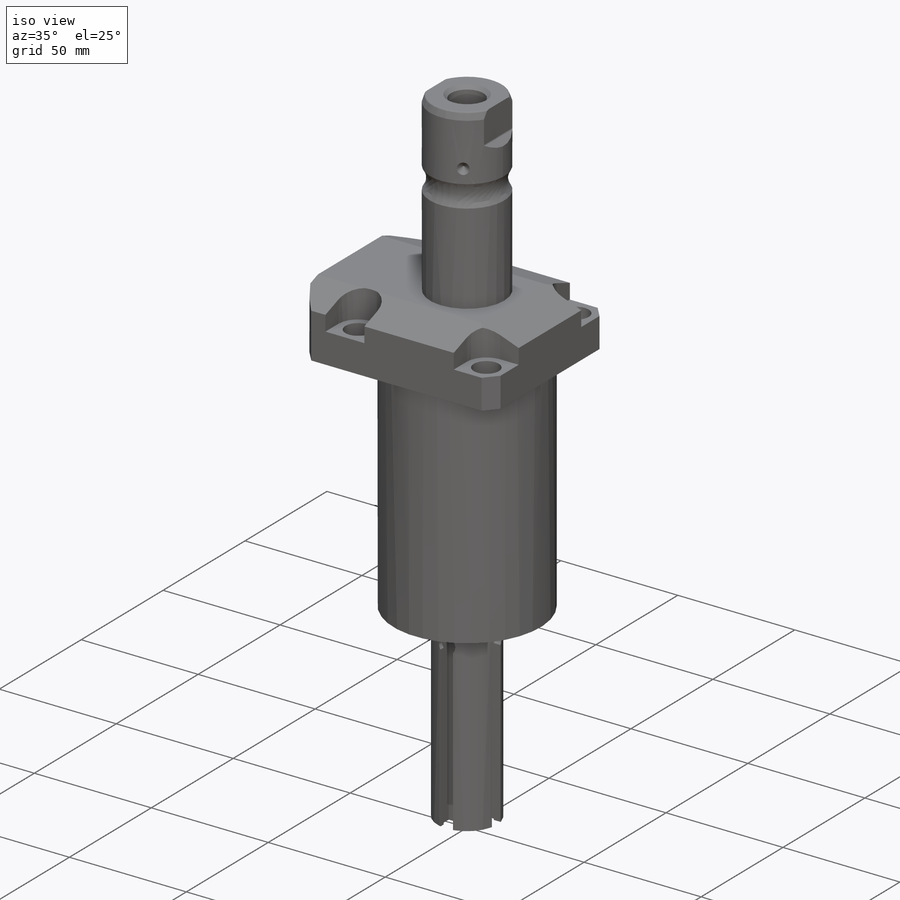
[diagram: iso view]
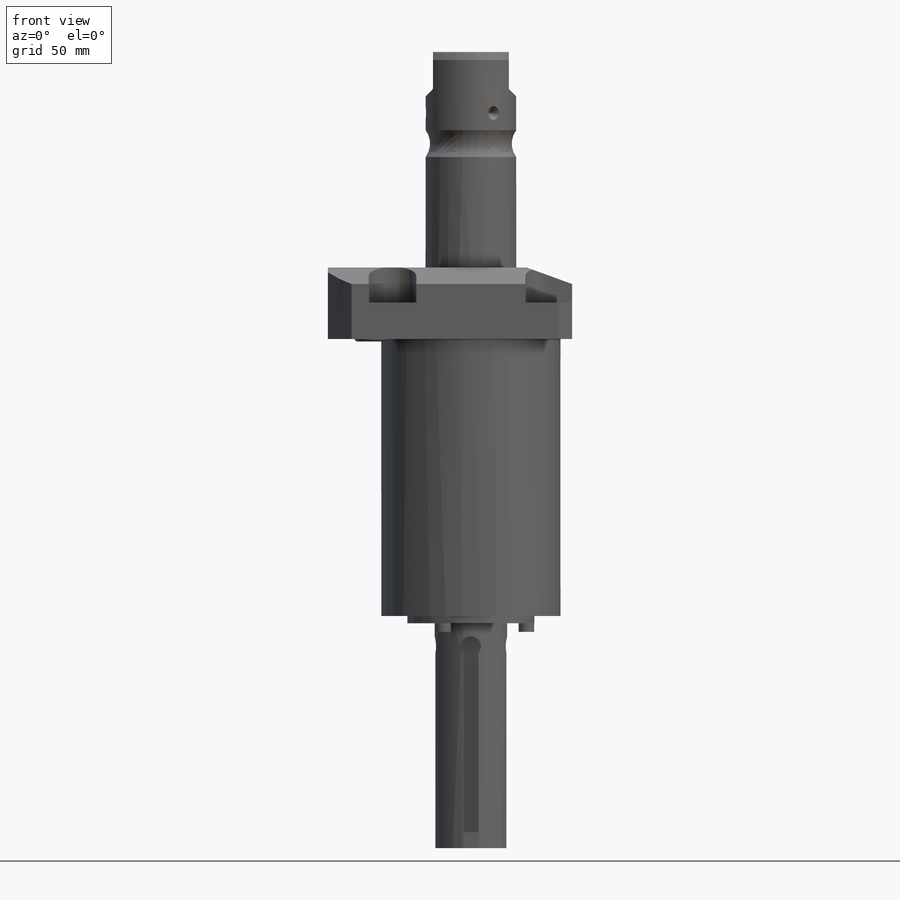
[diagram: front view]
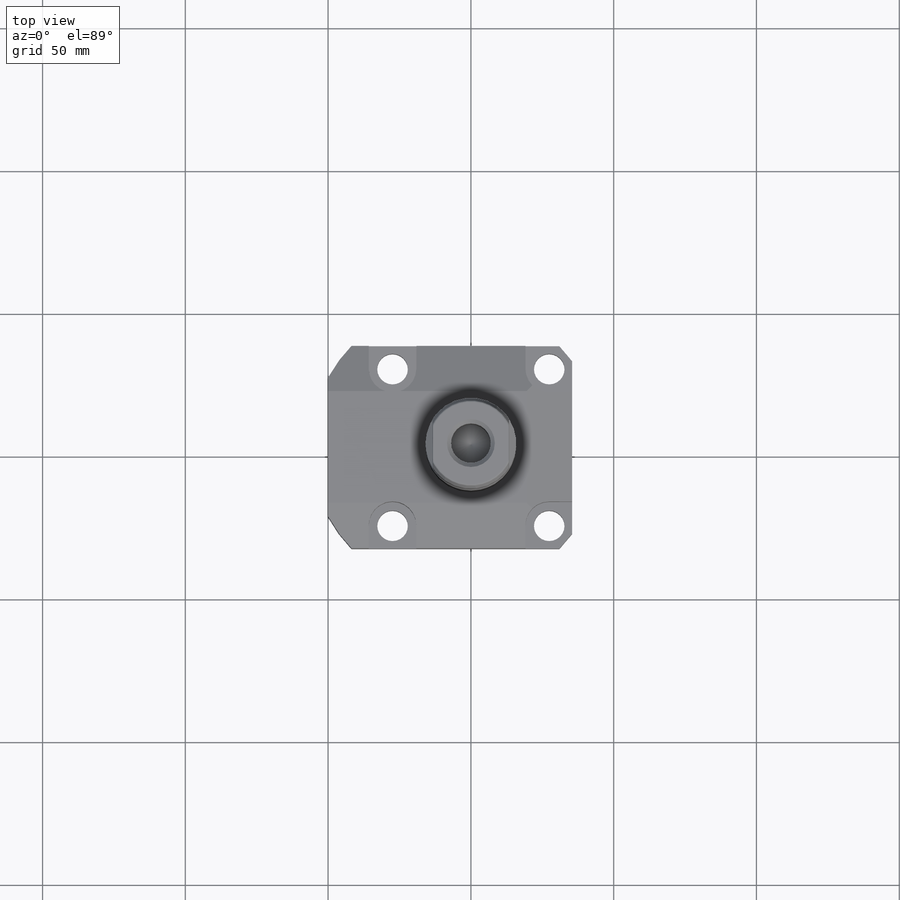
[diagram: top view]
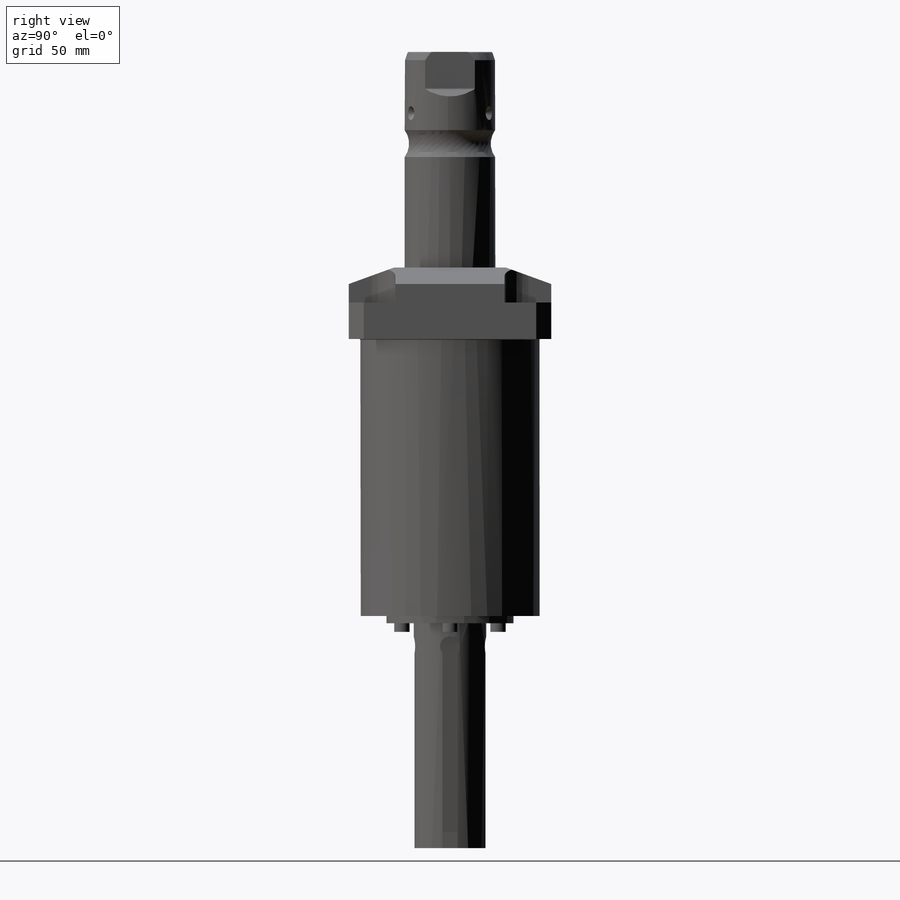
[diagram: right view]
SOLIDWORKS PART (.sldprt)
format: sldprt  version: not decoded by parser v0  size: 964,608 bytes
history: native  units: mm
features: sketch x22, cut_extrude x9, pattern_circular x6, cut_revolve x4, mirror x4, revolve x3, extrude x2, fillet x2, plane x2, hole x2, chamfer x2, material x1 (+11 scaffold rows collapsed)
feature tree (70):
  scaffold x11  (default folders/planes/origin — collapsed)
  material  "Alloy Steel"
  sketch  "Sketch1"  dims[c1.D1=35.433mm c1.D2=85.496mm c1.D3=70.866mm c2.D1=35.433mm]
  extrude  "Extrude1"  Depth=122.047mm
  sketch  "Sketch2"  dims[D1=101.6mm D2=5.4102mm]
  cut_extrude  "Cut-Extrude1"  Depth=0mm
  sketch  "Sketch3"  dims[D1=62.789mm D2=153.1874mm D3=97.028mm]
  cut_revolve  "Cut-Revolve1"  Angle=360deg
  fillet  "Fillet1"  Radius=0.381mm
  sketch  "Sketch4"  dims[c1.D2=8.3312mm c1.D1=27.432mm c1.D3=27.432mm c1.D4=54.864mm c2.D3=27.432mm]
  cut_extrude  "Cut-Extrude2"  Depth=12.243mm
  sketch  "Sketch5"  dims[c1.D1=28.575mm c1.D2=15.875mm c2.D2=20.0deg c2.D1=15.875mm]
  cut_extrude  "Cut-Extrude9"  [1 undecoded]
  mirror  "Mirror1"
  sketch  "Sketch9"  dims[c1.D1=15.875mm c1.D2=15.875mm c2.D2=20.0deg]
  cut_extrude  "Cut-Extrude7"  Depth=0mm
  plane  "Plane14"  Offset=35.0774mm
  sketch  "Sketch20"  dims[D1=14.5288mm D2=11.4046mm D3=1.4478mm D4=6.5024mm D5=1.016mm D6=2.4892mm D7=10.9728mm]
  cut_revolve  "Cut-Revolve4"  Angle=360deg
  mirror  "Mirror10"
  sketch  "Sketch10"  dims[c1.D1=2.3622mm c1.D2=0.2667mm c1.D3=9.0424mm c2.D2=0.2667mm]
  revolve  "Revolve4"  Angle=360deg
  mirror  "Mirror12"
  sketch  "Sketch15"  dims[c1.D2=1.016mm c1.D4=7.9248mm c1.D6=7.9248mm c1.D1=104.7496mm c1.D3=31.75mm c1.D5=32.106mm c2.D6=28.6512mm c2.D1=~14.860835mm c3.D1=~0.102126deg c4.D1=164.719mm c4.D2=~1.436841mm c5.D2=20.0deg c5.D7=~2.921006mm c5.D1=100.5332mm]
  revolve  "Revolve3"  Angle=360deg
  hole  "Hole1"  Diameter=10.7188mm Depth=12.776mm
  sketch  "Sketch18"
  sketch  "Sketch17"  dims[Diameter=10.7188mm Depth=12.776mm]
  chamfer  "Chamfer1"  Distance=0.635mm Angle=45deg
  plane  "Plane15"  Offset=12.4968mm
  sketch  "Sketch21"  dims[c1.D1=12.9794mm c1.D2=0.254mm c1.D3=22.098mm c1.D4=~0.804464mm c2.D4=45.0deg c2.D5=2.5527mm c2.D6=9.9568mm c2.D7=4.0894mm c3.D7=90.0deg c4.D7=19.05mm c4.D1=12.9794mm c4.D4=~1.102545mm c5.D4=45.0deg c5.D8=~1.56123mm c6.D8=15.0deg c6.D5=2.5527mm c6.D9=12.446mm]
  cut_revolve  "Cut-Revolve5"  Angle=360deg
  mirror  "Mirror13"
  fillet  "Fillet2"  Radius=0.635mm
  sketch  "Sketch26"  dims[c1.D1=~3.542685mm c2.D1=45.0deg c2.D2=4.826mm c2.D3=10.668mm]
  cut_revolve  "Cut-Revolve7"  Angle=360deg
  pattern_circular  "CirPattern1"  Count=3 Angle=120deg
  hole  "Hole2"  Diameter=13.8938mm Depth=24.638mm
  sketch  "Sketch28"
  sketch  "Sketch27"  dims[c1.D1=~97.659253deg c1.D2=~82.982399deg c1.Diameter=13.8938mm c2.D2=100.0mm c2.D3=~82.982399deg c2.D4=90.0deg c3.D3=~97.716715deg c3.Depth=24.638mm c3.Drill Angle=118.0deg]
  sketch  "Sketch29"  dims[c1.D2=~0.762002mm c1.D1=~10.741558mm c2.D1=45.0deg c2.D3=26.568mm c2.D4=12.7mm c2.D5=3.048mm]
  cut_extrude  "Cut-Extrude10"  [1 undecoded]
  chamfer  "Chamfer2"  Distance=1.4351mm Angle=45deg
  sketch  "Sketch30"  dims[c1.D1=44.45mm c1.D2=25.4mm c1.D3=2.54mm c1.D4=81.28mm c2.D2=25.4mm]
  revolve  "Revolve5"  Angle=360deg
  sketch  "Sketch33"  dims[c1.D1=38.862mm c1.D2=5.4102mm c2.D1=~14.046002mm]
  extrude  "Boss-Extrude1"  Depth=2.9972mm
  pattern_circular  "CirPattern2"  Count=3 Angle=120deg
  sketch  "Sketch34"  dims[c1.D1=6.985mm c1.D2=3.4925mm c1.D3=5.2832mm c1.D4=2.6416mm c1.D5=6.477mm c1.D6=3.302mm c2.D5=6.223mm c2.D7=3.81mm]
  cut_extrude  "Cut-Extrude11"  Depth=70.612mm
  pattern_circular  "CirPattern3"  Count=4 Angle=90deg
  sketch  "Sketch35"  dims[c1.D1=~9.078456mm c1.D2=~14.289187mm c2.D1=6.985mm]
  cut_extrude  "Cut-Extrude15"  Depth=7.62mm
  pattern_circular  "CirPattern4"  Count=4 Angle=90deg
  sketch  "Sketch37"  dims[c1.D1=~1.447221mm c2.D1=30.0deg c2.D2=~1.016352mm c3.D2=30.0deg c3.D3=~1.016352mm c4.D3=30.0deg c4.D4=~1.364891mm c5.D4=30.0deg c5.D5=2.4892mm c5.D6=1.2446mm c5.D7=~2.87274mm c5.D8=~0.71628mm]
  cut_extrude  "Cut-Extrude16"  Depth=1.27mm
  pattern_circular  "CirPattern5"  Count=3 Angle=120deg
  sketch  "Sketch39"  dims[c1.D1=~2.058372mm c1.D2=~2.058372mm c2.D1=3.4544mm]
  cut_extrude  "Cut-Extrude17"  Depth=2.54mm
  pattern_circular  "CirPattern6"  Count=12 Angle=360deg
decode coverage: 48 of 56 modeling features carry decoded parameters
note: ~ marks probable driven/reference dimensions
note: 2 parameter values undecoded
note: suppression state not decoded; provenance and decode notes live in map.json
